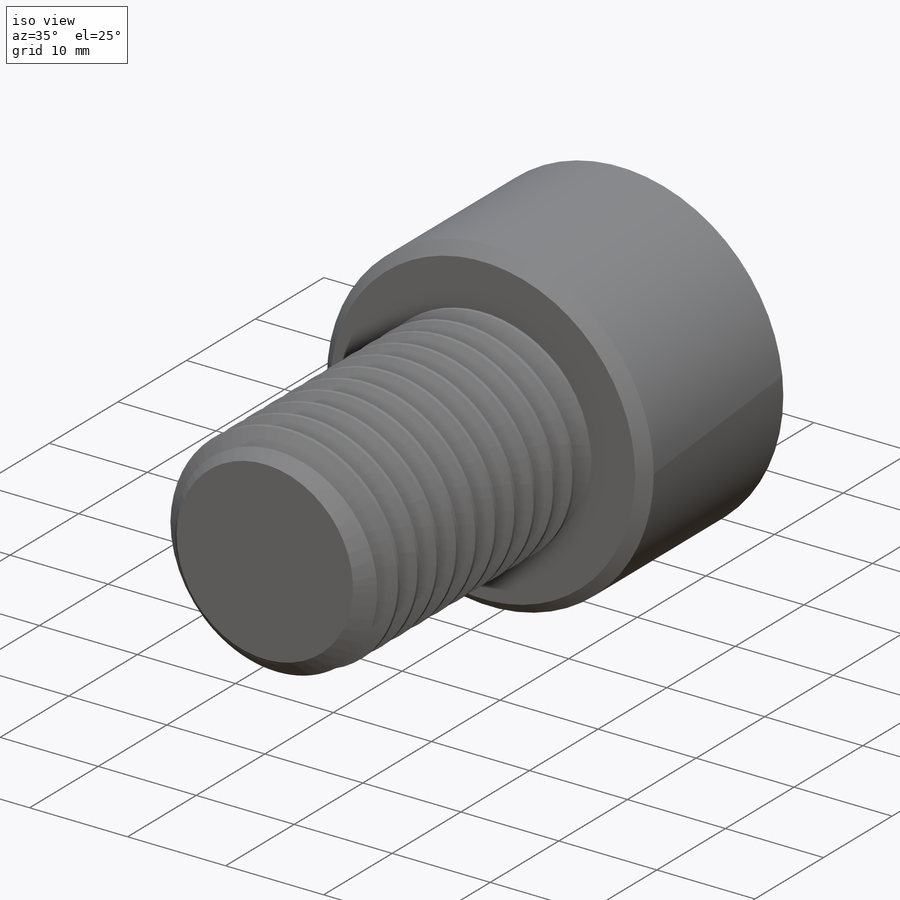
[diagram: iso view]
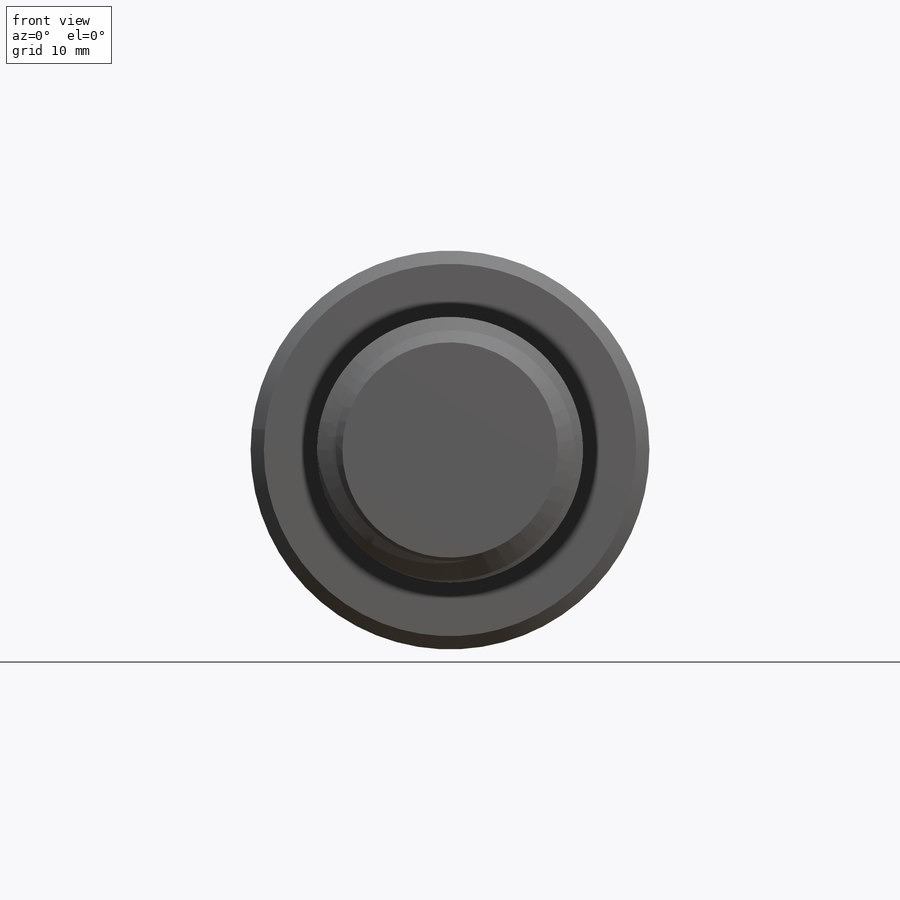
[diagram: front view]
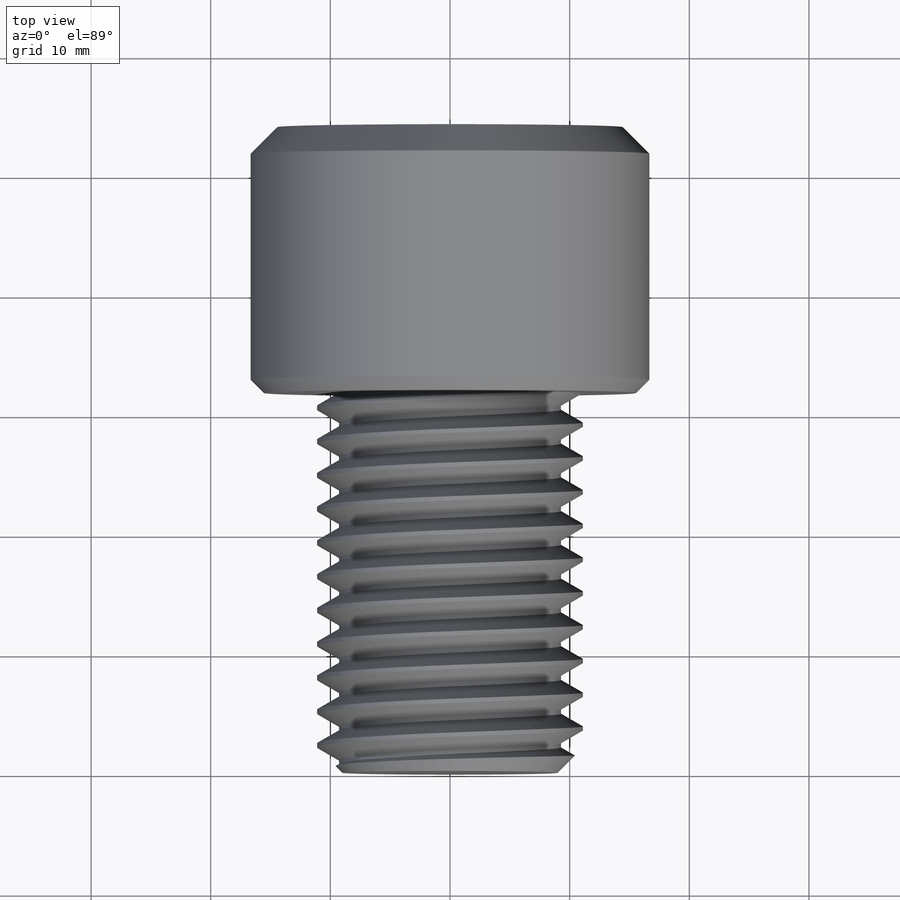
[diagram: top view]
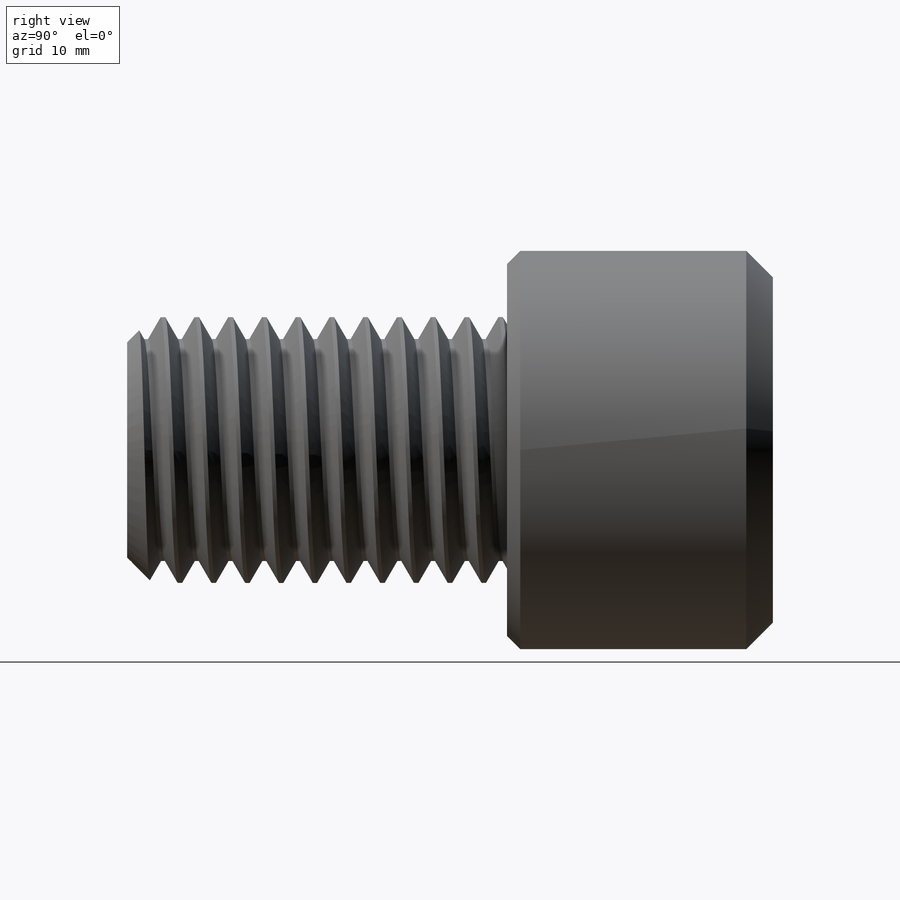
[diagram: right view]
SOLIDWORKS PART (.sldprt)
format: sldprt  version: not decoded by parser v0  size: 1,027,072 bytes
history: native  units: mm
features: sketch x7, chamfer x3, extrude x2, cut_extrude x2, material x1, helix x1, sweep x1 (+14 scaffold rows collapsed)
feature tree (31):
  scaffold x14  (default folders/planes/origin — collapsed)
  material  "Plain Carbon Steel"
  sketch  "Sketch1"  dims[OD=22.225mm]
  extrude  "Extrude1"  Depth=31.75mm screw length=31.75mm
  sketch  "Sketch2"
  helix  "Helix/Spiral1"  Pitch=34.572222mm pitch=2.822222mm
  chamfer  "Chamfer3"  Distance=2.116667mm Angle=45deg
  sketch  "Sketch3"  dims[c1.D1=~0.352778mm c1.D2=~1.411111mm c1.D3=~1.069256mm c2.D3=60.0deg]
  sweep  "Cut-Sweep1"
  sketch  "Sketch6"  dims[head dia=33.3375mm]
  extrude  "Extrude2"  Depth=22.225mm head depth=22.225mm
  sketch  "Sketch7"  dims[hex dia=19.05mm]
  cut_extrude  "Cut-Extrude1"  Depth=14.2875mm
  sketch  "Sketch8"
  cut_extrude  "Cut-Extrude2"  Depth=2.2225mm
  chamfer  "Chamfer1"  Distance=2.2225mm Angle=45deg
  chamfer  "Chamfer2"  Distance=1.11125mm Angle=45deg
  sketch  "Sketch9"  dims[D1=~15.522222mm D2=22.225mm D3=33.3375mm D4=31.75mm]
decode coverage: 13 of 16 modeling features carry decoded parameters
note: ~ marks probable driven/reference dimensions
note: suppression state not decoded; provenance and decode notes live in map.json
